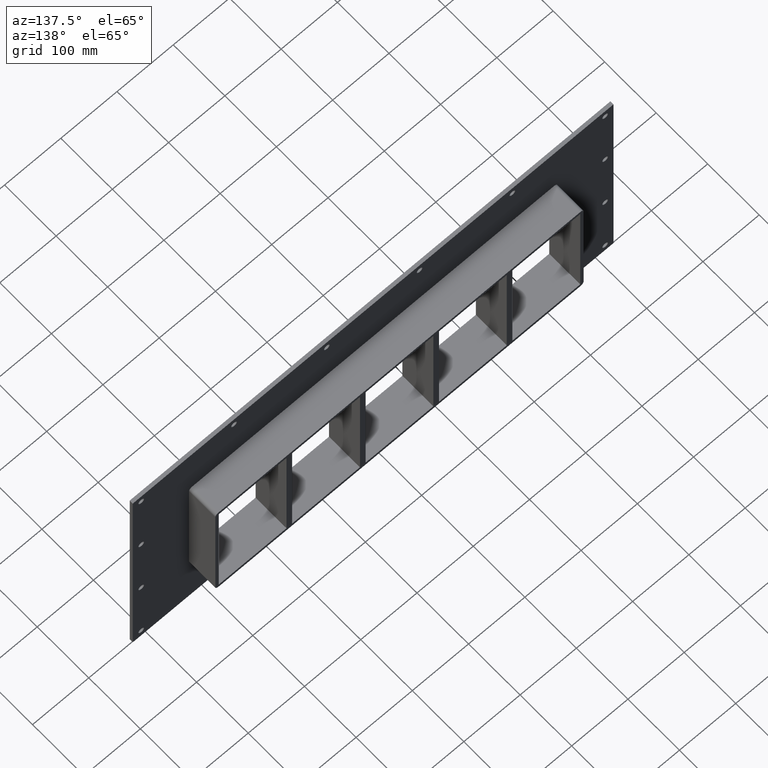
[diagram: clean part render]
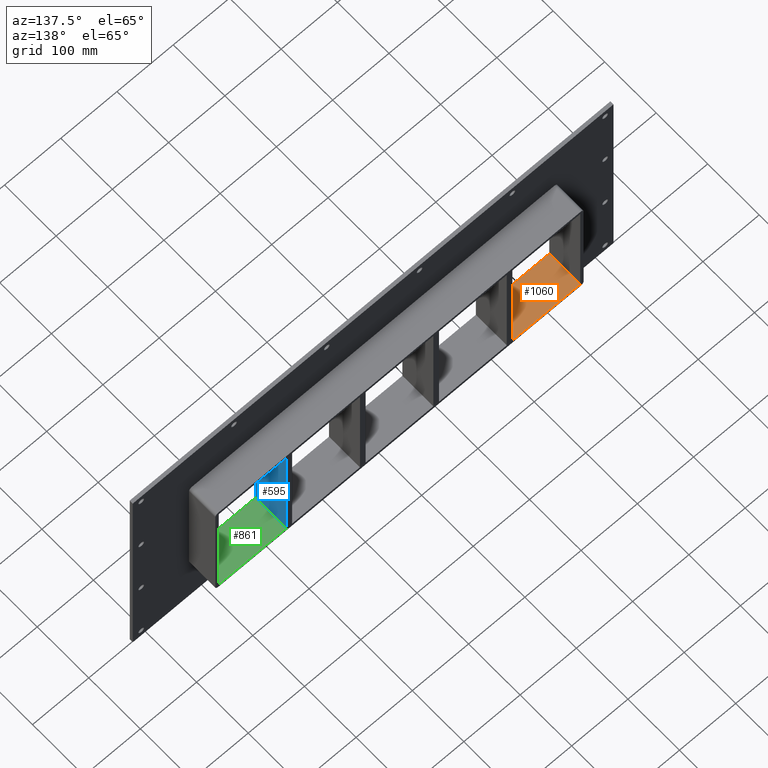
[diagram: same view with three faces highlighted in distinct colors, each labeled with its STEP entity id]
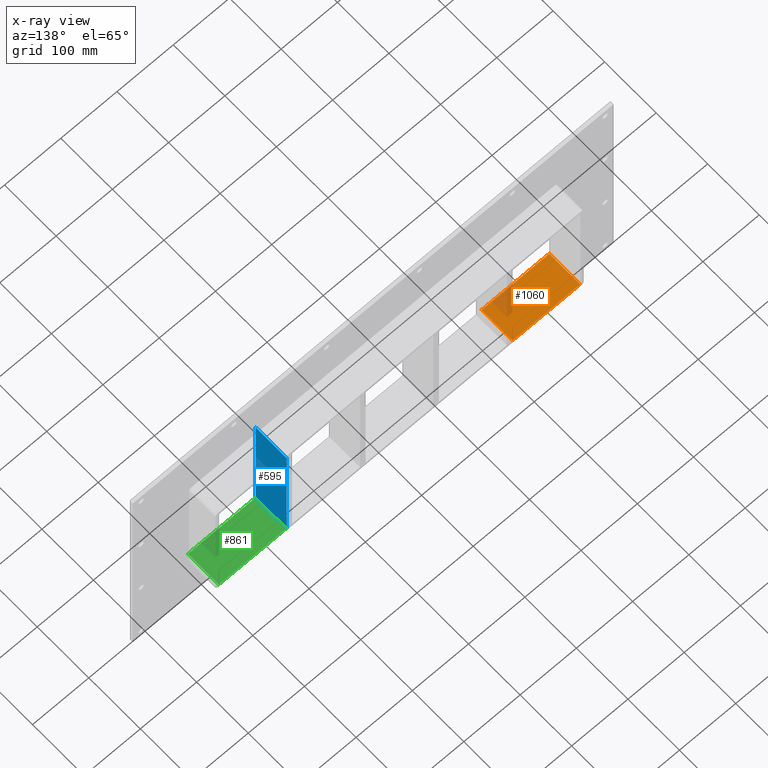
[diagram: x-ray of the same camera — body ghosted, the three highlighted faces saturated]
A machine part, auxiliary view with three faces highlighted in distinct colors.
The next image is the same camera in x-ray (body ghosted, the three faces saturated) — at least one of them is partly hidden behind the body in this view.
Their STEP definitions:

[orange] entity #1060 — the highlighted planar face has unit normal (0, 0, -1).
#973=CARTESIAN_POINT('',(-200.75000000000145,-3.0,-108.99999999999999));
#974=VERTEX_POINT('',#973);
#991=CARTESIAN_POINT('',(-200.75000000000145,57.0,-108.99999999999999));
#992=VERTEX_POINT('',#991);
#999=CARTESIAN_POINT('',(-200.75000000000145,-3.0,-108.99999999999999));
#1000=DIRECTION('',(0.0,1.0,0.0));
#1001=VECTOR('',#1000,60.000000000000007);
#1002=LINE('',#999,#1001);
#1003=EDGE_CURVE('',#974,#992,#1002,.T.);
#1030=CARTESIAN_POINT('',(321.25000000000006,0.0,-108.99999999999999));
#1031=DIRECTION('',(0.0,0.0,-1.0));
#1032=DIRECTION('',(-1.0,0.0,0.0));
#1033=AXIS2_PLACEMENT_3D('',#1030,#1031,#1032);
#1034=PLANE('',#1033);
#1035=ORIENTED_EDGE('',*,*,#1003,.T.);
#1036=CARTESIAN_POINT('',(-321.25000000000006,57.0,-108.99999999999999));
#1037=VERTEX_POINT('',#1036);
#1038=CARTESIAN_POINT('',(-321.25000000000011,57.0,-108.99999999999999));
#1039=DIRECTION('',(1.0,0.0,0.0));
#1040=VECTOR('',#1039,120.49999999999866);
#1041=LINE('',#1038,#1040);
#1042=EDGE_CURVE('',#1037,#992,#1041,.T.);
#1043=ORIENTED_EDGE('',*,*,#1042,.F.);
#1044=CARTESIAN_POINT('',(-321.25000000000006,-3.0,-108.99999999999999));
#1045=VERTEX_POINT('',#1044);
#1046=CARTESIAN_POINT('',(-321.25000000000006,-3.0,-108.99999999999999));
#1047=DIRECTION('',(0.0,1.0,0.0));
#1048=VECTOR('',#1047,60.0);
#1049=LINE('',#1046,#1048);
#1050=EDGE_CURVE('',#1045,#1037,#1049,.T.);
#1051=ORIENTED_EDGE('',*,*,#1050,.F.);
#1052=CARTESIAN_POINT('',(-200.75000000000145,-3.0,-108.99999999999999));
#1053=DIRECTION('',(-1.0,0.0,0.0));
#1054=VECTOR('',#1053,120.49999999999866);
#1055=LINE('',#1052,#1054);
#1056=EDGE_CURVE('',#974,#1045,#1055,.T.);
#1057=ORIENTED_EDGE('',*,*,#1056,.F.);
#1058=EDGE_LOOP('',(#1035,#1043,#1051,#1057));
#1059=FACE_OUTER_BOUND('',#1058,.T.);
#1060=ADVANCED_FACE('',(#1059),#1034,.F.);

[blue] entity #595 — the highlighted planar face has unit normal (1, 0, 0).
#556=CARTESIAN_POINT('',(200.74999999999278,-3.0,108.99999999999999));
#557=DIRECTION('',(1.0,0.0,0.0));
#558=DIRECTION('',(0.0,0.0,-1.0));
#559=AXIS2_PLACEMENT_3D('',#556,#557,#558);
#560=PLANE('',#559);
#561=CARTESIAN_POINT('',(200.74999999999278,-3.0,108.99999999999999));
#562=VERTEX_POINT('',#561);
#563=CARTESIAN_POINT('',(200.74999999999278,-3.0,-108.99999999998421));
#564=VERTEX_POINT('',#563);
#565=CARTESIAN_POINT('',(200.74999999999278,-3.0,108.99999999999999));
#566=DIRECTION('',(0.0,0.0,-1.0));
#567=VECTOR('',#566,217.9999999999842);
#568=LINE('',#565,#567);
#569=EDGE_CURVE('',#562,#564,#568,.T.);
#570=ORIENTED_EDGE('',*,*,#569,.T.);
#571=CARTESIAN_POINT('',(200.74999999999278,57.0,-108.99999999998421));
#572=VERTEX_POINT('',#571);
#573=CARTESIAN_POINT('',(200.74999999999278,57.000000000000007,-108.99999999999999));
#574=DIRECTION('',(0.0,-1.0,0.0));
#575=VECTOR('',#574,60.000000000000007);
#576=LINE('',#573,#575);
#577=EDGE_CURVE('',#572,#564,#576,.T.);
#578=ORIENTED_EDGE('',*,*,#577,.F.);
#579=CARTESIAN_POINT('',(200.74999999999278,57.0,108.99999999999999));
#580=VERTEX_POINT('',#579);
#581=CARTESIAN_POINT('',(200.74999999999278,57.0,108.99999999999999));
#582=DIRECTION('',(0.0,0.0,-1.0));
#583=VECTOR('',#582,217.9999999999842);
#584=LINE('',#581,#583);
#585=EDGE_CURVE('',#580,#572,#584,.T.);
#586=ORIENTED_EDGE('',*,*,#585,.F.);
#587=CARTESIAN_POINT('',(200.74999999999278,-3.0,109.0));
#588=DIRECTION('',(0.0,1.0,0.0));
#589=VECTOR('',#588,60.000000000000007);
#590=LINE('',#587,#589);
#591=EDGE_CURVE('',#562,#580,#590,.T.);
#592=ORIENTED_EDGE('',*,*,#591,.F.);
#593=EDGE_LOOP('',(#570,#578,#586,#592));
#594=FACE_OUTER_BOUND('',#593,.T.);
#595=ADVANCED_FACE('',(#594),#560,.T.);

[green] entity #861 — the highlighted planar face has unit normal (0, 0, -1).
#563=CARTESIAN_POINT('',(200.74999999999278,-3.0,-108.99999999998421));
#564=VERTEX_POINT('',#563);
#571=CARTESIAN_POINT('',(200.74999999999278,57.0,-108.99999999998421));
#572=VERTEX_POINT('',#571);
#573=CARTESIAN_POINT('',(200.74999999999278,57.000000000000007,-108.99999999999999));
#574=DIRECTION('',(0.0,-1.0,0.0));
#575=VECTOR('',#574,60.000000000000007);
#576=LINE('',#573,#575);
#577=EDGE_CURVE('',#572,#564,#576,.T.);
#831=CARTESIAN_POINT('',(321.25000000000006,0.0,-108.99999999999999));
#832=DIRECTION('',(0.0,0.0,-1.0));
#833=DIRECTION('',(-1.0,0.0,0.0));
#834=AXIS2_PLACEMENT_3D('',#831,#832,#833);
#835=PLANE('',#834);
#836=ORIENTED_EDGE('',*,*,#577,.T.);
#837=CARTESIAN_POINT('',(321.25000000000006,-3.0,-108.99999999999999));
#838=VERTEX_POINT('',#837);
#839=CARTESIAN_POINT('',(321.25000000000006,-3.0,-108.99999999999999));
#840=DIRECTION('',(-1.0,0.0,0.0));
#841=VECTOR('',#840,120.50000000000728);
#842=LINE('',#839,#841);
#843=EDGE_CURVE('',#838,#564,#842,.T.);
#844=ORIENTED_EDGE('',*,*,#843,.F.);
#845=CARTESIAN_POINT('',(321.25000000000006,57.0,-108.99999999999999));
#846=VERTEX_POINT('',#845);
#847=CARTESIAN_POINT('',(321.25000000000006,56.999999999999993,-108.99999999999999));
#848=DIRECTION('',(0.0,-1.0,0.0));
#849=VECTOR('',#848,59.999999999999993);
#850=LINE('',#847,#849);
#851=EDGE_CURVE('',#846,#838,#850,.T.);
#852=ORIENTED_EDGE('',*,*,#851,.F.);
#853=CARTESIAN_POINT('',(200.74999999999278,57.0,-108.99999999999999));
#854=DIRECTION('',(1.0,0.0,0.0));
#855=VECTOR('',#854,120.50000000000728);
#856=LINE('',#853,#855);
#857=EDGE_CURVE('',#572,#846,#856,.T.);
#858=ORIENTED_EDGE('',*,*,#857,.F.);
#859=EDGE_LOOP('',(#836,#844,#852,#858));
#860=FACE_OUTER_BOUND('',#859,.T.);
#861=ADVANCED_FACE('',(#860),#835,.F.);